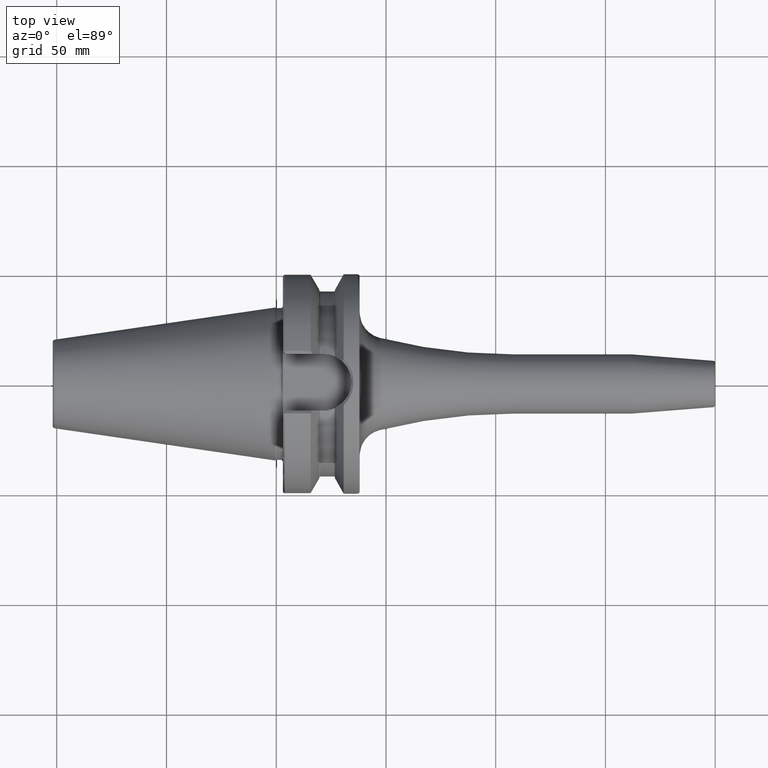
[diagram: clean part render]
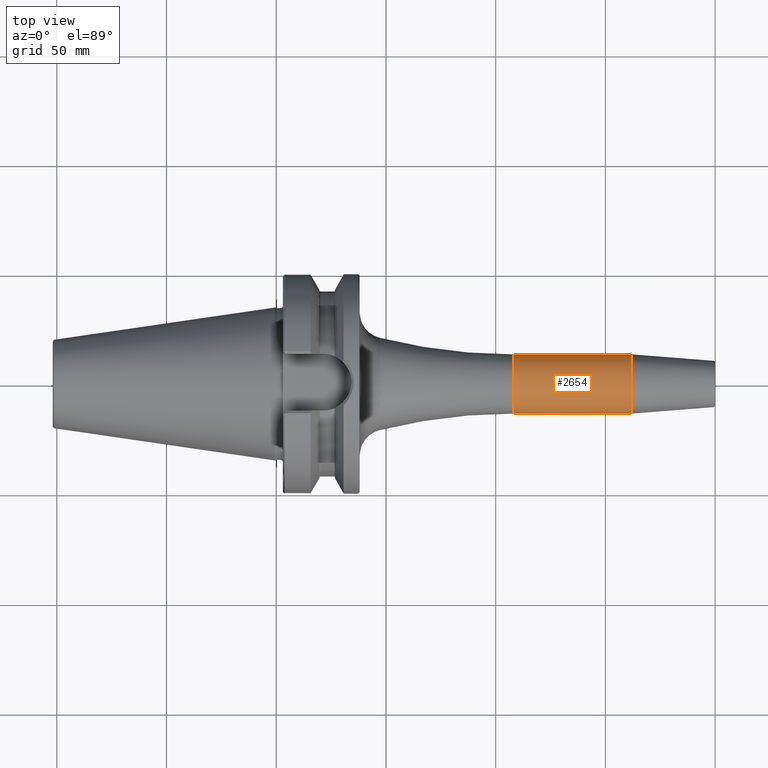
[diagram: same view with one face highlighted and labeled with its STEP entity id]
A machine part, top view. The second image highlights one B-rep face of the part: STEP entity #2654.
In plain terms, the highlighted cylindrical surface (edge-blend (fillet) strip) has radius 13.5 mm, axis along (1, 0, 0).
Its self-contained STEP definition (entity closure, byte-faithful):
#879=DIRECTION('',(-1.E0,0.E0,0.E0));
#880=VECTOR('',#879,5.388138579148E1);
#881=CARTESIAN_POINT('',(1.618813857915E2,-1.35E1,0.E0));
#882=LINE('',#881,#880);
#888=DIRECTION('',(-1.E0,0.E0,0.E0));
#889=VECTOR('',#888,5.388138579148E1);
#890=CARTESIAN_POINT('',(1.618813857915E2,1.35E1,0.E0));
#891=LINE('',#890,#889);
#892=CARTESIAN_POINT('',(1.08E2,0.E0,0.E0));
#893=DIRECTION('',(1.E0,0.E0,0.E0));
#894=DIRECTION('',(0.E0,1.E0,0.E0));
#895=AXIS2_PLACEMENT_3D('',#892,#893,#894);
#897=CARTESIAN_POINT('',(1.618813857915E2,0.E0,0.E0));
#898=DIRECTION('',(1.E0,0.E0,0.E0));
#899=DIRECTION('',(0.E0,1.E0,0.E0));
#900=AXIS2_PLACEMENT_3D('',#897,#898,#899);
#1411=CARTESIAN_POINT('',(1.618813857915E2,1.35E1,0.E0));
#1412=CARTESIAN_POINT('',(1.618813857915E2,-1.35E1,0.E0));
#1413=VERTEX_POINT('',#1411);
#1414=VERTEX_POINT('',#1412);
#1431=CARTESIAN_POINT('',(1.08E2,1.35E1,0.E0));
#1432=CARTESIAN_POINT('',(1.08E2,-1.35E1,0.E0));
#1433=VERTEX_POINT('',#1431);
#1434=VERTEX_POINT('',#1432);
#2642=CARTESIAN_POINT('',(2.99E1,0.E0,0.E0));
#2643=DIRECTION('',(1.E0,0.E0,0.E0));
#2644=DIRECTION('',(0.E0,-1.E0,0.E0));
#2645=AXIS2_PLACEMENT_3D('',#2642,#2643,#2644);
#2646=CYLINDRICAL_SURFACE('',#2645,1.35E1);
#2647=ORIENTED_EDGE('',*,*,#2606,.F.);
#2648=ORIENTED_EDGE('',*,*,#2637,.F.);
#2650=ORIENTED_EDGE('',*,*,#2649,.T.);
#2651=ORIENTED_EDGE('',*,*,#2633,.T.);
#2652=EDGE_LOOP('',(#2647,#2648,#2650,#2651));
#2653=FACE_OUTER_BOUND('',#2652,.F.);
#2654=ADVANCED_FACE('',(#2653),#2646,.T.);
#896=CIRCLE('',#895,1.35E1);
#901=CIRCLE('',#900,1.35E1);
#2606=EDGE_CURVE('',#1433,#1434,#896,.T.);
#2633=EDGE_CURVE('',#1414,#1434,#882,.T.);
#2637=EDGE_CURVE('',#1413,#1433,#891,.T.);
#2649=EDGE_CURVE('',#1413,#1414,#901,.T.);